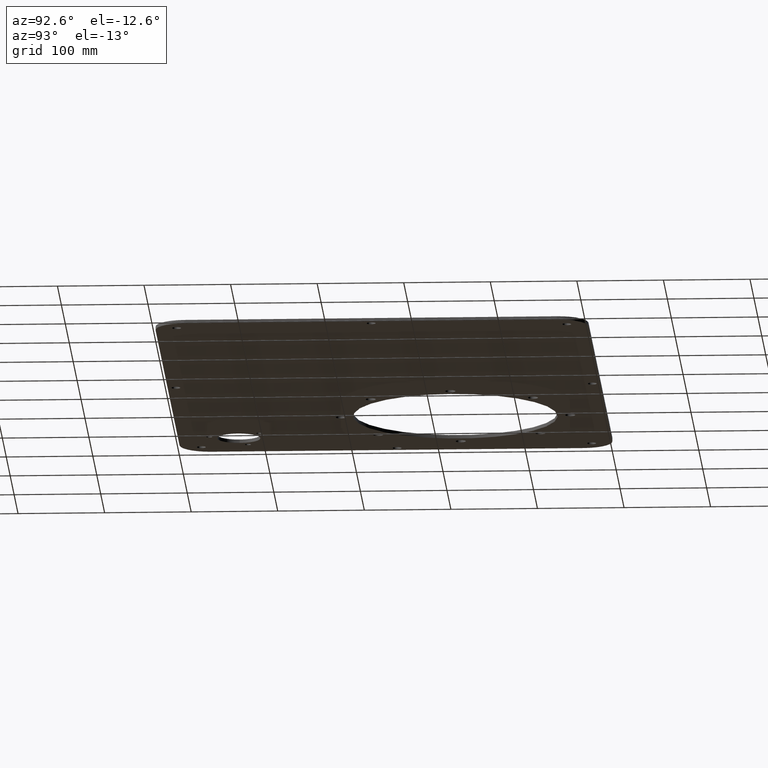
[diagram: clean part render]
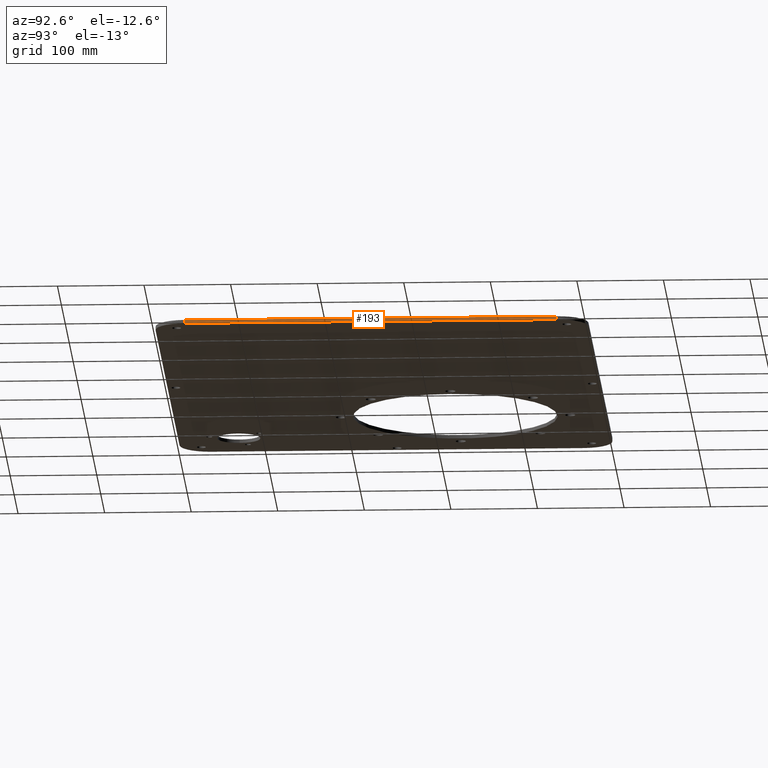
[diagram: same view with one face highlighted and labeled with its STEP entity id]
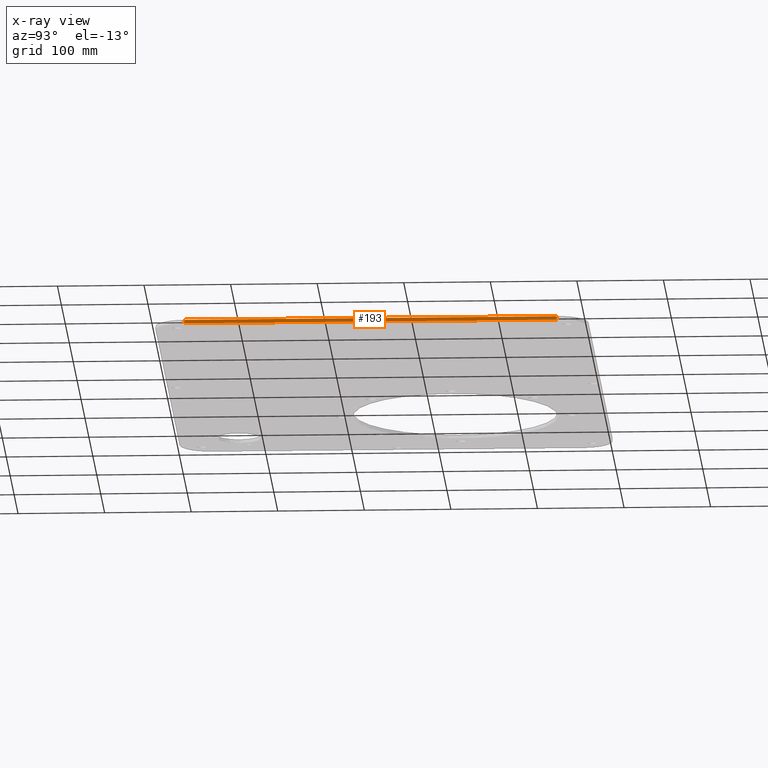
[diagram: x-ray of the same camera — body ghosted, the highlighted face saturated]
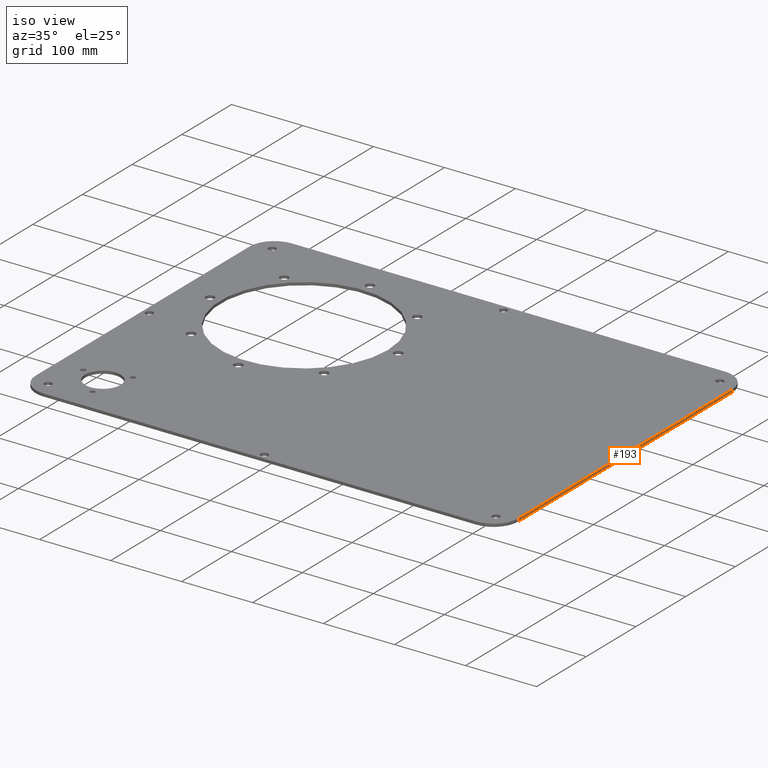
[diagram: same view with one face highlighted and labeled with its STEP entity id]
A machine part, auxiliary view. The second image highlights one B-rep face of the part: STEP entity #193.
The next image is the same camera in x-ray: the body ghosted, the highlighted face saturated — about 0% of this face is hidden behind the body in this view.
A second angle (iso view) of the same face is appended — the face is thin or edge-on in the first view.
In plain terms, the highlighted planar face has unit normal (-1, 0, 0).
Its self-contained STEP definition (entity closure, byte-faithful):
#193=ADVANCED_FACE('',(#230),#224,.F.);
#224=PLANE('',#623);
#230=FACE_OUTER_BOUND('',#240,.T.);
#240=EDGE_LOOP('',(#334,#335,#336,#337));
#334=ORIENTED_EDGE('',*,*,#524,.T.);
#335=ORIENTED_EDGE('',*,*,#525,.F.);
#336=ORIENTED_EDGE('',*,*,#526,.F.);
#337=ORIENTED_EDGE('',*,*,#527,.T.);
#466=VERTEX_POINT('',#886);
#467=VERTEX_POINT('',#887);
#468=VERTEX_POINT('',#889);
#469=VERTEX_POINT('',#891);
#524=EDGE_CURVE('',#466,#467,#590,.T.);
#525=EDGE_CURVE('',#468,#467,#591,.T.);
#526=EDGE_CURVE('',#469,#468,#592,.T.);
#527=EDGE_CURVE('',#469,#466,#593,.T.);
#590=LINE('',#885,#606);
#591=LINE('',#888,#607);
#592=LINE('',#890,#608);
#593=LINE('',#892,#609);
#606=VECTOR('',#706,1.);
#607=VECTOR('',#707,1.);
#608=VECTOR('',#708,1.);
#609=VECTOR('',#709,1.);
#623=AXIS2_PLACEMENT_3D('',#893,#710,#711);
#706=DIRECTION('',(0.,1.,0.));
#707=DIRECTION('',(0.,0.,-1.));
#708=DIRECTION('',(0.,1.,0.));
#709=DIRECTION('',(0.,0.,-1.));
#710=DIRECTION('',(-1.,0.,0.));
#711=DIRECTION('',(0.,0.,1.));
#885=CARTESIAN_POINT('',(340.,-2665.,0.));
#886=CARTESIAN_POINT('',(340.,-2665.,0.));
#887=CARTESIAN_POINT('',(340.,-2235.,0.));
#888=CARTESIAN_POINT('',(340.,-2235.,4.));
#889=CARTESIAN_POINT('',(340.,-2235.,4.));
#890=CARTESIAN_POINT('',(340.,-2665.,4.));
#891=CARTESIAN_POINT('',(340.,-2665.,4.));
#892=CARTESIAN_POINT('',(340.,-2665.,4.));
#893=CARTESIAN_POINT('',(340.,-2665.,4.));